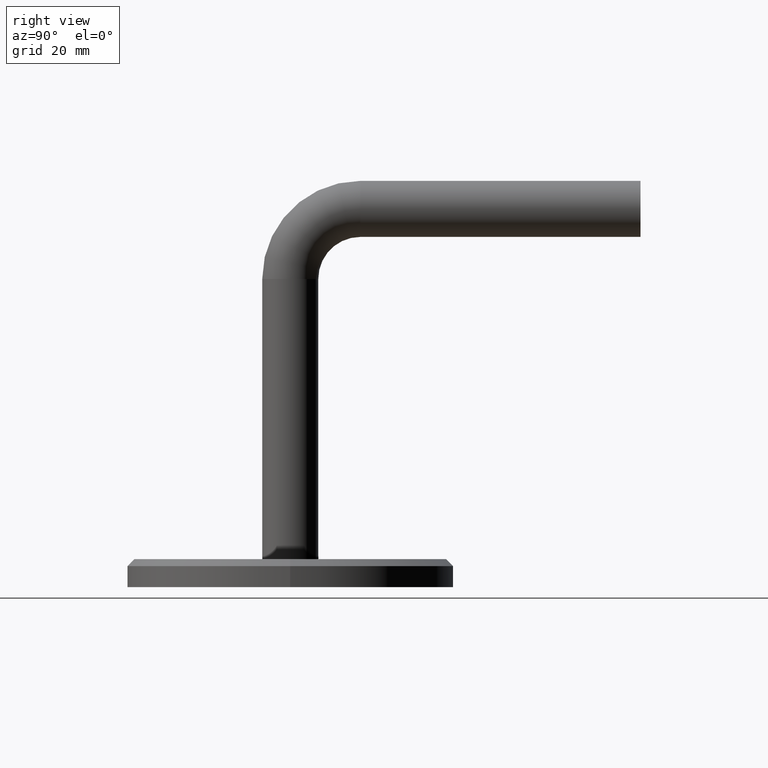
[diagram: clean part render]
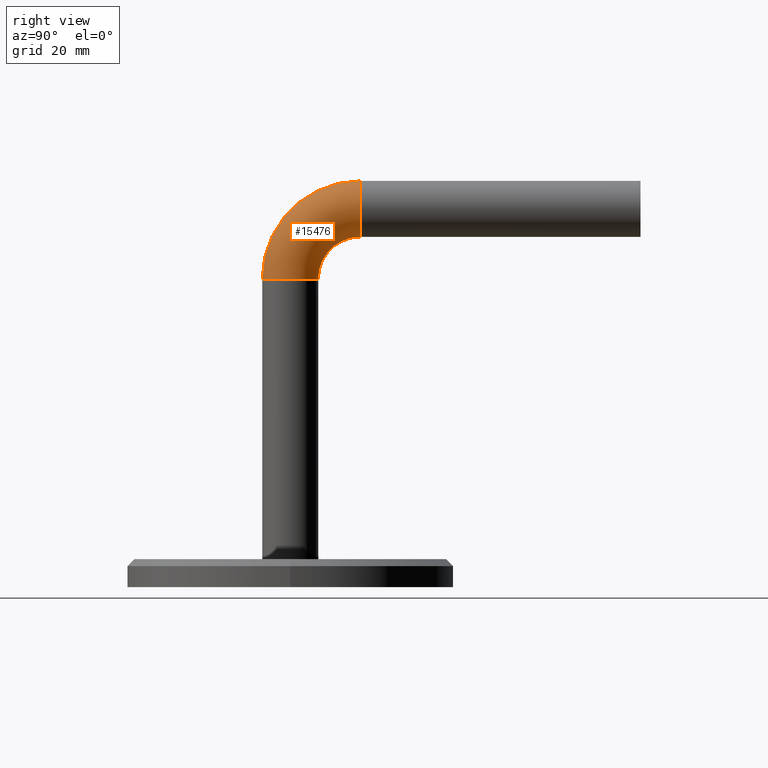
[diagram: same view with one face highlighted and labeled with its STEP entity id]
A machine part, right view. The second image highlights one B-rep face of the part: STEP entity #15476.
In plain terms, the highlighted toroidal blend (fillet) surface has major radius 15 mm and minor (blend) radius 6 mm.
Its self-contained STEP definition (entity closure, byte-faithful):
#110 = DIRECTION ( 'NONE',  ( 0.000000000000000000, 0.000000000000000000, -1.000000000000000000 ) ) ;
#1705 = AXIS2_PLACEMENT_3D ( 'NONE', #12595, #10081, #110 ) ;
#1789 = DIRECTION ( 'NONE',  ( 1.000000000000000000, -0.000000000000000000, -0.000000000000000000 ) ) ;
#1980 = CARTESIAN_POINT ( 'NONE',  ( 0.000000000000000000, 5.999999999999986677, -60.00000000000000000 ) ) ;
#2203 = TOROIDAL_SURFACE ( 'NONE', #13243, 15.00000000000000711, 6.000000000000000888 ) ;
#2364 = EDGE_LOOP ( 'NONE', ( #7829, #5223, #15647, #5380 ) ) ;
#2862 = DIRECTION ( 'NONE',  ( 0.000000000000000000, 0.000000000000000000, -1.000000000000000000 ) ) ;
#3049 = VERTEX_POINT ( 'NONE', #1980 ) ;
#3718 = EDGE_CURVE ( 'NONE', #3049, #3805, #7545, .T. ) ;
#3805 = VERTEX_POINT ( 'NONE', #12901 ) ;
#4639 = DIRECTION ( 'NONE',  ( 0.000000000000000000, 0.000000000000000000, -1.000000000000000000 ) ) ;
#4704 = EDGE_CURVE ( 'NONE', #9069, #11384, #8307, .T. ) ;
#5223 = ORIENTED_EDGE ( 'NONE', *, *, #8397, .F. ) ;
#5284 = CARTESIAN_POINT ( 'NONE',  ( 0.000000000000000000, -1.387778780781445676E-14, -60.00000000000000000 ) ) ;
#5380 = ORIENTED_EDGE ( 'NONE', *, *, #9563, .T. ) ;
#6775 = AXIS2_PLACEMENT_3D ( 'NONE', #8773, #11340, #13839 ) ;
#6854 = DIRECTION ( 'NONE',  ( 1.000000000000000000, 0.000000000000000000, 0.000000000000000000 ) ) ;
#7385 = CARTESIAN_POINT ( 'NONE',  ( 7.347880794884127625E-16, -6.000000000000015099, -60.00000000000000000 ) ) ;
#7545 = CIRCLE ( 'NONE', #10673, 9.000000000000007105 ) ;
#7798 = CARTESIAN_POINT ( 'NONE',  ( 7.347880794884114806E-16, 15.00000000000000178, -81.00000000000000000 ) ) ;
#7829 = ORIENTED_EDGE ( 'NONE', *, *, #4704, .F. ) ;
#8307 = CIRCLE ( 'NONE', #1705, 21.00000000000000355 ) ;
#8397 = EDGE_CURVE ( 'NONE', #3049, #9069, #15433, .T. ) ;
#8434 = CARTESIAN_POINT ( 'NONE',  ( 0.000000000000000000, 15.00000000000000000, -60.00000000000000000 ) ) ;
#8773 = CARTESIAN_POINT ( 'NONE',  ( 0.000000000000000000, 15.00000000000000000, -75.00000000000000000 ) ) ;
#9069 = VERTEX_POINT ( 'NONE', #7385 ) ;
#9154 = CARTESIAN_POINT ( 'NONE',  ( -7.347880794884120722E-16, 15.00000000000000000, -60.00000000000000000 ) ) ;
#9247 = AXIS2_PLACEMENT_3D ( 'NONE', #5284, #11653, #6854 ) ;
#9563 = EDGE_CURVE ( 'NONE', #3805, #11384, #13067, .T. ) ;
#9632 = DIRECTION ( 'NONE',  ( 1.000000000000000000, -0.000000000000000000, -0.000000000000000000 ) ) ;
#10081 = DIRECTION ( 'NONE',  ( 1.000000000000000000, -0.000000000000000000, -0.000000000000000000 ) ) ;
#10673 = AXIS2_PLACEMENT_3D ( 'NONE', #9154, #1789, #2862 ) ;
#11340 = DIRECTION ( 'NONE',  ( 0.000000000000000000, -1.000000000000000000, -2.312964634635742957E-16 ) ) ;
#11384 = VERTEX_POINT ( 'NONE', #7798 ) ;
#11653 = DIRECTION ( 'NONE',  ( 0.000000000000000000, 0.000000000000000000, 1.000000000000000000 ) ) ;
#12595 = CARTESIAN_POINT ( 'NONE',  ( 0.000000000000000000, 15.00000000000000000, -60.00000000000000000 ) ) ;
#12596 = FACE_OUTER_BOUND ( 'NONE', #2364, .T. ) ;
#12901 = CARTESIAN_POINT ( 'NONE',  ( 0.000000000000000000, 14.99999999999999822, -68.99999999999998579 ) ) ;
#13067 = CIRCLE ( 'NONE', #6775, 6.000000000000000888 ) ;
#13243 = AXIS2_PLACEMENT_3D ( 'NONE', #8434, #9632, #4639 ) ;
#13839 = DIRECTION ( 'NONE',  ( 1.000000000000000000, 0.000000000000000000, 0.000000000000000000 ) ) ;
#15433 = CIRCLE ( 'NONE', #9247, 6.000000000000000888 ) ;
#15476 = ADVANCED_FACE ( 'NONE', ( #12596 ), #2203, .T. ) ;
#15647 = ORIENTED_EDGE ( 'NONE', *, *, #3718, .T. ) ;